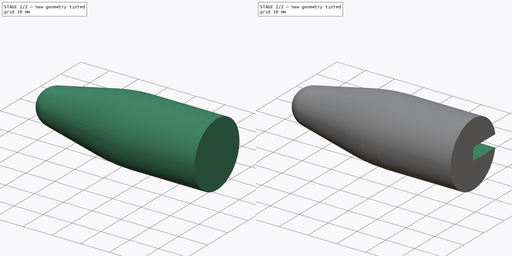
[diagram: build sequence overview — one tinted view per stage of 2, left to right]
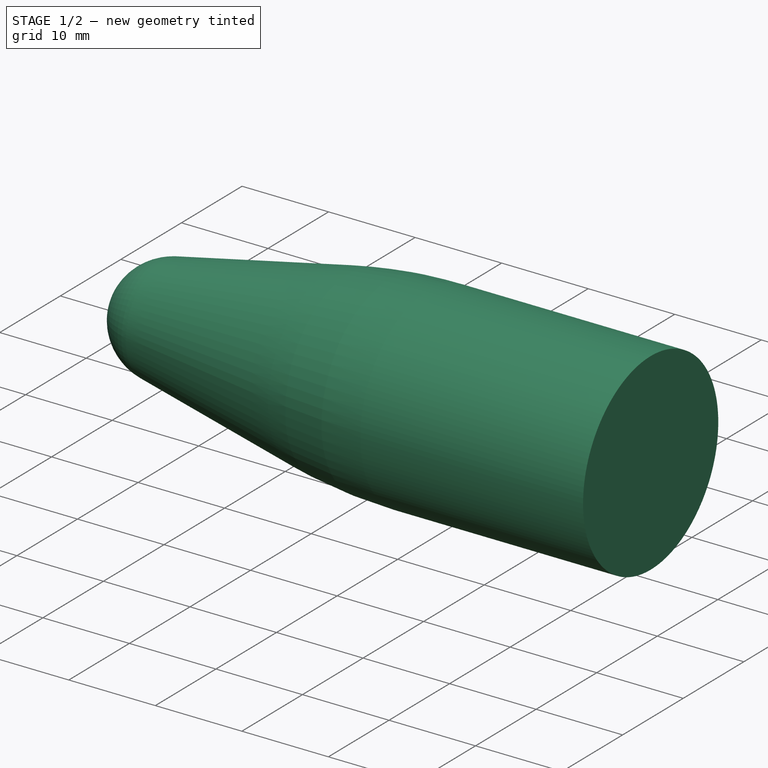
[diagram: stage 1 of 2 — iso view after this stage's code; geometry added in this stage tinted green]
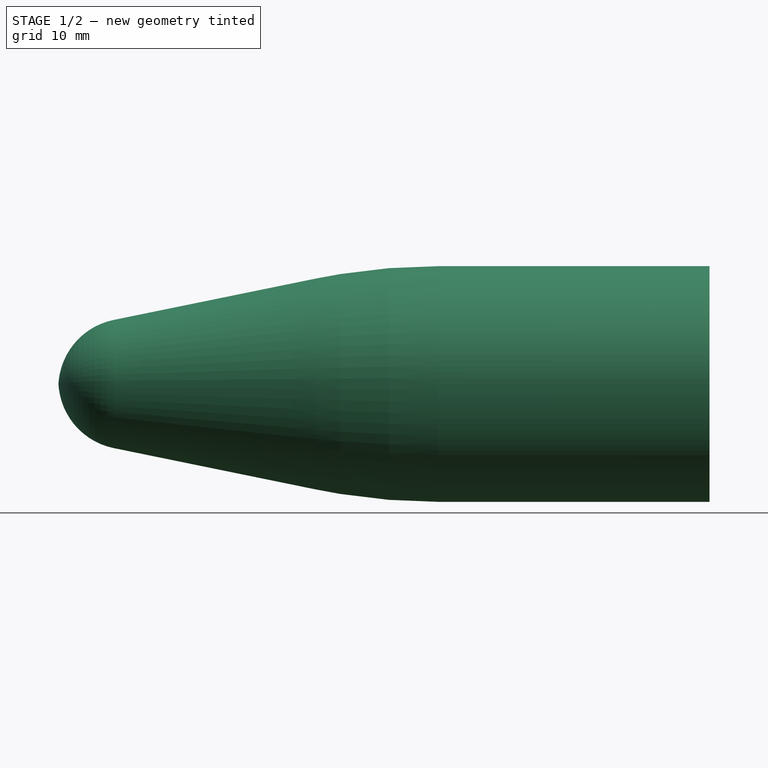
[diagram: stage 1 of 2 — front view after this stage's code; geometry added in this stage tinted green]
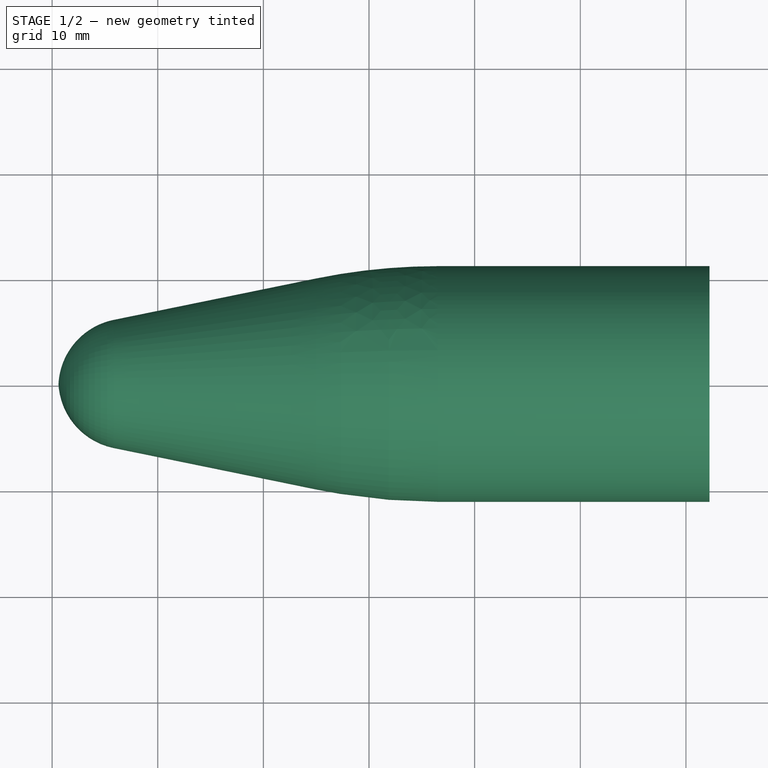
[diagram: stage 1 of 2 — top view after this stage's code; geometry added in this stage tinted green]
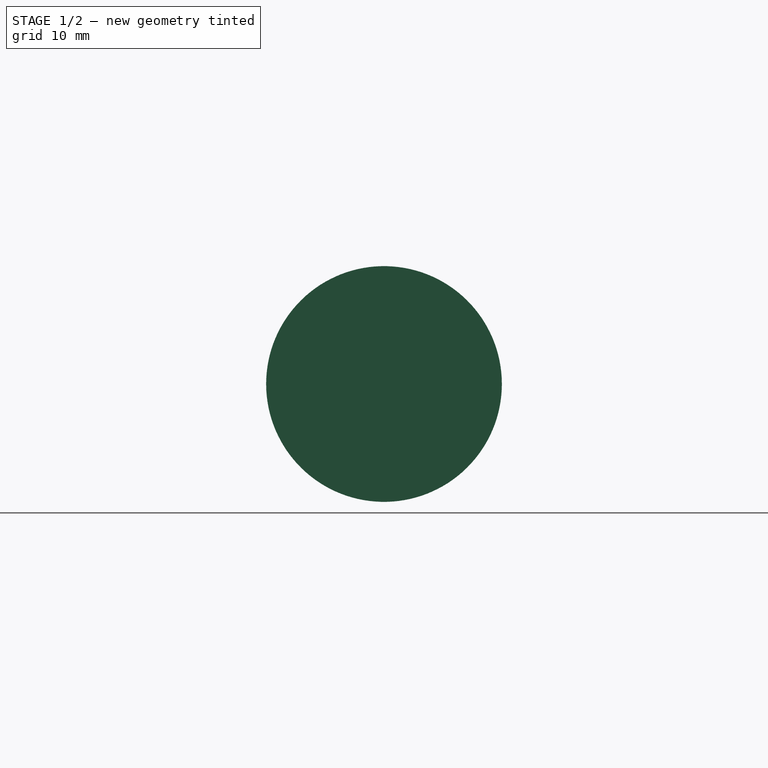
[diagram: stage 1 of 2 — right view after this stage's code; geometry added in this stage tinted green]
FCSTD DOCUMENT  (FreeCAD 0.18R16131 (Git))
Label: muso
License: All rights reserved
LicenseURL: http://en.wikipedia.org/wiki/All_rights_reserved
objects: Sketcher::SketchObject×4, PartDesign::Revolution×1, PartDesign::Pocket×1, PartDesign::Body×1
note: 9 computed .brp shape members not serialized (recipe doc carries the construction recipe); baked Part::Feature solids carry a one-line shape summary decoded from their .brp

FEATURE [Sketcher::SketchObject] CopySketch004
  sketch-geometry (10):
    g0: LineSegment StartX=-94.2446 StartY=6.83669 StartZ=0 EndX=-74.9207 EndY=10.7048 EndZ=0
    g1: LineSegment StartX=-63.6033 StartY=11.8263 StartZ=0 EndX=-42.5521 EndY=11.8263 EndZ=0
    g2: LineSegment StartX=-42.5521 StartY=11.8263 StartZ=0 EndX=-25.1285 EndY=11.8263 EndZ=0
    g3: ArcOfCircle CenterX=-63.6033 CenterY=-45.8337 CenterZ=0 NormalX=0 NormalY=0 NormalZ=1 AngleXU=0 Radius=57.6601 StartAngle=1.5708 EndAngle=1.76836
    g4: ArcOfCircle CenterX=-92.8385 CenterY=-0.187922 CenterZ=0 NormalX=0 NormalY=0 NormalZ=1 AngleXU=0 Radius=7.16396 StartAngle=1.76836 EndAngle=3.11536
    g5: LineSegment StartX=-25.1285 StartY=0 StartZ=0 EndX=-100 EndY=-2e-16 EndZ=0
    g6: GeomPoint X=-42.6345 Y=0 Z=0
    g7: GeomPoint X=-25.1285 Y=11.8263 Z=0
    g8: GeomPoint X=-25.1285 Y=0 Z=0
    g9: LineSegment StartX=-25.1285 StartY=11.8263 StartZ=0 EndX=-25.1285 EndY=0 EndZ=0
  constraints (15):
    c: Horizontal(g1)
    c: Coincident(g1,g2)
    c: Horizontal(g2)
    c: Tangent(g0,g3) = 1.5708
    c: Tangent(g1,g3) = 1.5708
    c: Tangent(g0,g4) = 1.5708
    c: Coincident(g5,g4) = 1.5708
    c: PointOnObject(g6,g5)
    c: PointOnObject(g7,g2)
    c: PointOnObject(g8,g5)
    c: Coincident(g9,g7)
    c: Coincident(g9,g8)
    c: Vertical(g9)
    c: PointOnObject(g5,g9)
    c: PointOnObject(g2,g9)
FEATURE [Sketcher::SketchObject] CopyCopySketch004
  sketch-geometry (10):
    g0: LineSegment StartX=-94.1746 StartY=6.06711 StartZ=0 EndX=-74.9926 EndY=9.99307 EndZ=0
    g1: LineSegment StartX=-63.5022 StartY=11.1569 StartZ=0 EndX=-49.0764 EndY=11.1569 EndZ=0
    g2: LineSegment StartX=-49.0764 StartY=11.1569 StartZ=0 EndX=-37.7656 EndY=11.1569 EndZ=0
    g3: ArcOfCircle CenterX=-63.5022 CenterY=-46.1484 CenterZ=0 NormalX=0 NormalY=0 NormalZ=1 AngleXU=0 Radius=57.3053 StartAngle=1.5708 EndAngle=1.77268
    g4: ArcOfCircle CenterX=-92.8622 CenterY=-0.344938 CenterZ=0 NormalX=0 NormalY=0 NormalZ=1 AngleXU=0 Radius=6.54497 StartAngle=1.77268 EndAngle=3.08887
    g5: LineSegment StartX=-37.7656 StartY=0 StartZ=0 EndX=-99.3981 EndY=9e-16 EndZ=0
    g6: GeomPoint X=-50.3335 Y=0 Z=0
    g7: GeomPoint X=-37.7656 Y=11.1569 Z=0
    g8: GeomPoint X=-37.7656 Y=0 Z=0
    g9: LineSegment StartX=-37.7656 StartY=11.1569 StartZ=0 EndX=-37.7656 EndY=0 EndZ=0
  constraints (17):
    c: Horizontal(g1)
    c: Coincident(g1,g2)
    c: Horizontal(g2)
    c: Tangent(g0,g3) = 1.5708
    c: Tangent(g1,g3) = 1.5708
    c: Tangent(g0,g4) = 1.5708
    c: Coincident(g5,g4) = 1.5708
    c: PointOnObject(g6,g5)
    c: PointOnObject(g7,g2)
    c: PointOnObject(g8,g5)
    c: Coincident(g9,g7)
    c: Coincident(g9,g8)
    c: Vertical(g9)
    c: PointOnObject(g5,g9)
    c: PointOnObject(g2,g9)
    c: PointOnObject(g5,g-1)
    c: PointOnObject(g4,g-1)
FEATURE [PartDesign::Revolution] Revolution
  Angle = 360
  Axis = (1,0,0)
  Base = (0,0,0)
  Profile = -> CopyCopySketch004
  ReferenceAxis = -> CopyCopySketch004 [H_Axis]
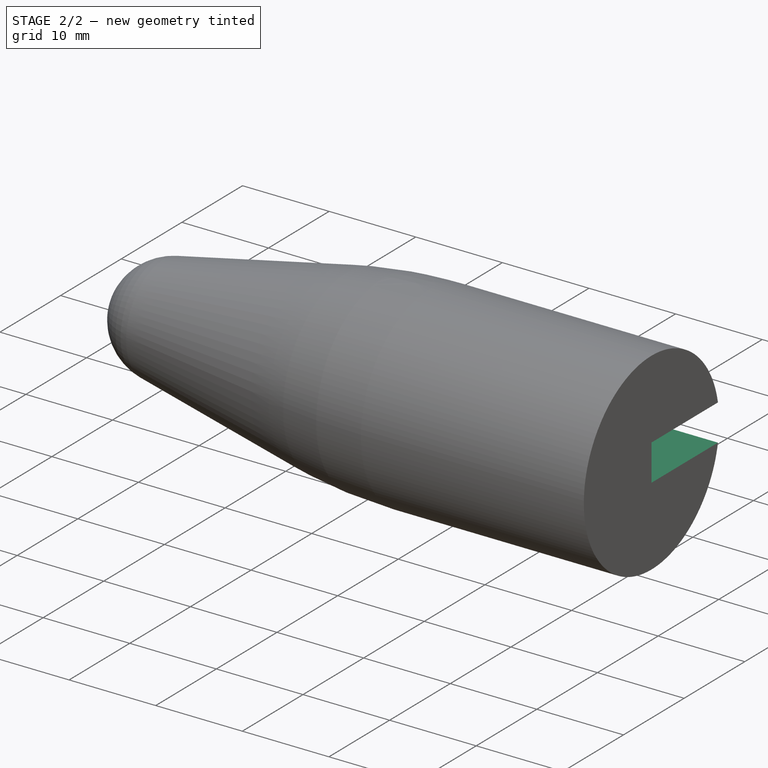
[diagram: stage 2 of 2 — iso view after this stage's code; geometry added in this stage tinted green]
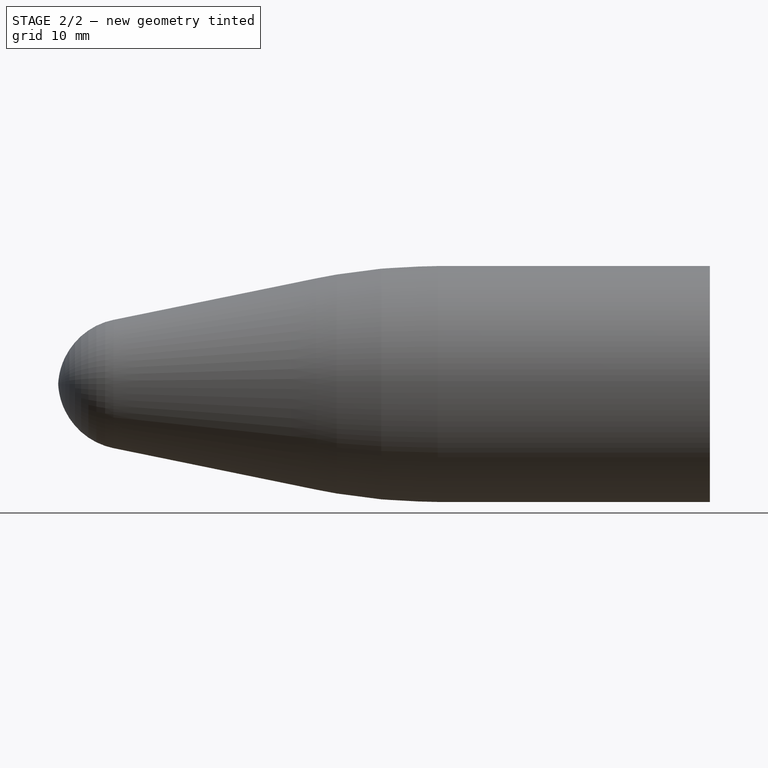
[diagram: stage 2 of 2 — front view after this stage's code; geometry added in this stage tinted green]
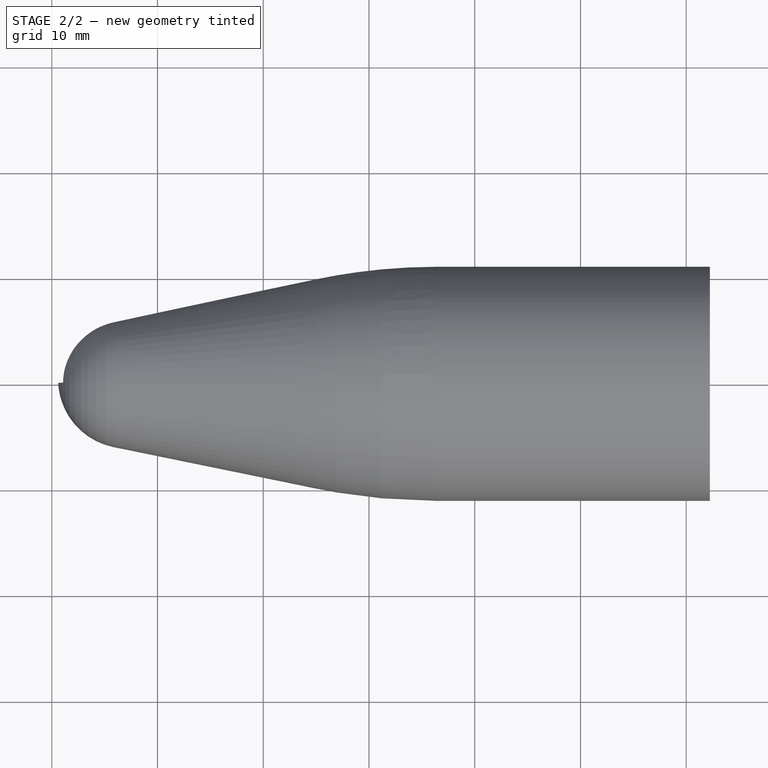
[diagram: stage 2 of 2 — top view after this stage's code; geometry added in this stage tinted green]
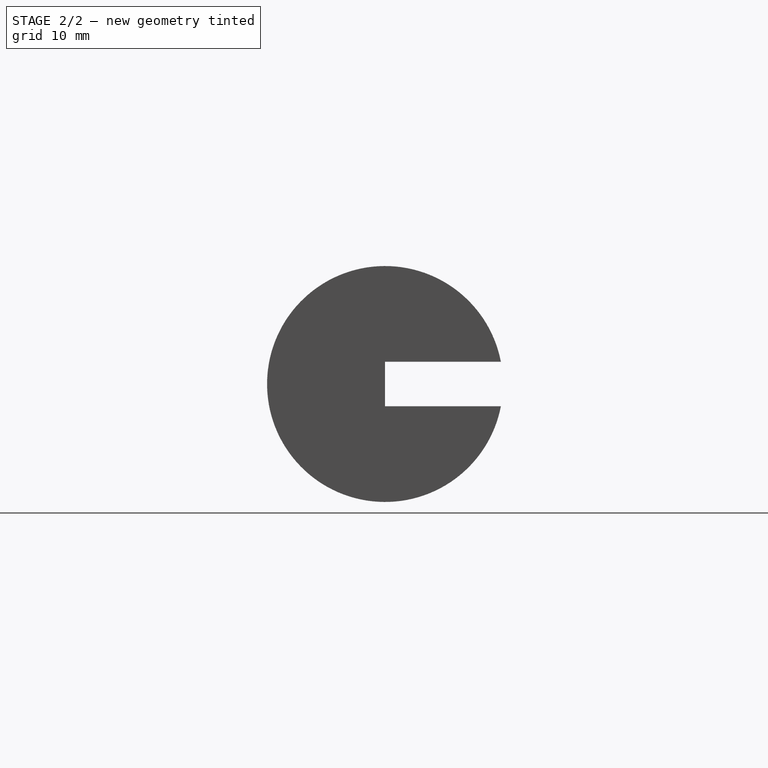
[diagram: stage 2 of 2 — right view after this stage's code; geometry added in this stage tinted green]
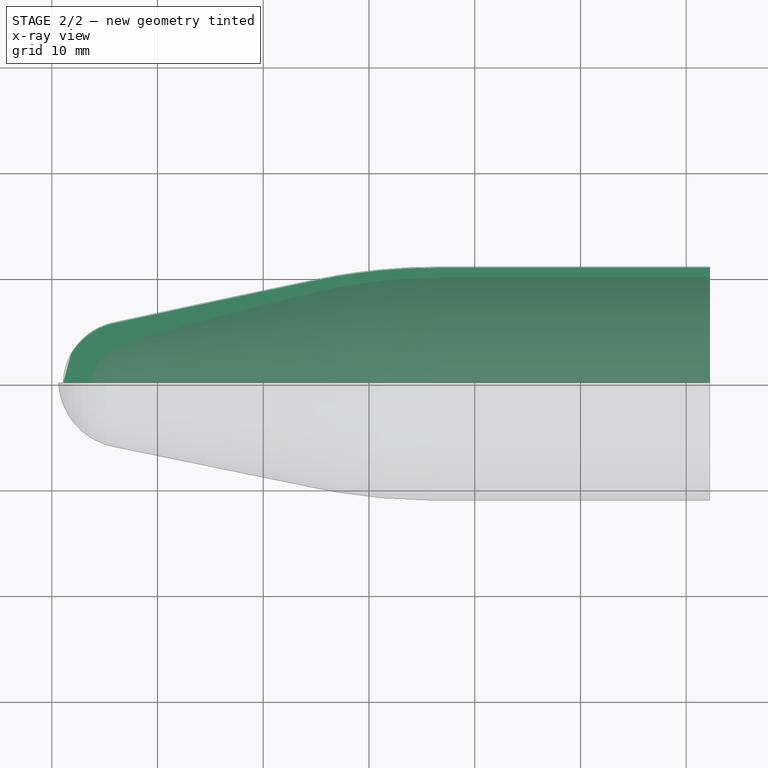
[diagram: stage 2 of 2 — x-ray composite at the top view; earlier geometry ghosted, this stage's added geometry solid]
FEATURE [Sketcher::SketchObject] Sketch
  MapMode = 5
  Placement = pos=(0,0,0) rot=(1,0,0;1.5708rad)
  Support = -> [XZ_Plane]
FEATURE [Sketcher::SketchObject] Sketch001
  MapMode = 5
  Placement = pos=(0,0,0) rot=(1,0,0;1.5708rad)
  Support = -> [XZ_Plane]
  sketch-geometry (4):
    g0: LineSegment StartX=-102.699 StartY=2.1 StartZ=0 EndX=-17.6595 EndY=2.1 EndZ=0
    g1: LineSegment StartX=-17.6595 StartY=2.1 StartZ=0 EndX=-17.6595 EndY=-2.1 EndZ=0
    g2: LineSegment StartX=-17.6595 StartY=-2.1 StartZ=0 EndX=-102.699 EndY=-2.1 EndZ=0
    g3: LineSegment StartX=-102.699 StartY=-2.1 StartZ=0 EndX=-102.699 EndY=2.1 EndZ=0
  constraints (9):
    c: Coincident(g0,g1)
    c: Coincident(g1,g2)
    c: Coincident(g2,g3)
    c: Coincident(g3,g0)
    c: Horizontal(g0)
    c: Horizontal(g2)
    c: Vertical(g3)
    c: Symmetric(g0,g1,g-1)
    c: DistanceY(g1,g0) = 4.2
FEATURE [PartDesign::Pocket] Pocket
  BaseFeature = -> Revolution
  Length = 20
  Length2 = 100
  Profile = -> Sketch001
  Type = 0
FEATURE [PartDesign::Body] Body
  Group = -> [Revolution,Sketch,Sketch001,Pocket]
  Origin = -> Origin
  Tip = -> Pocket
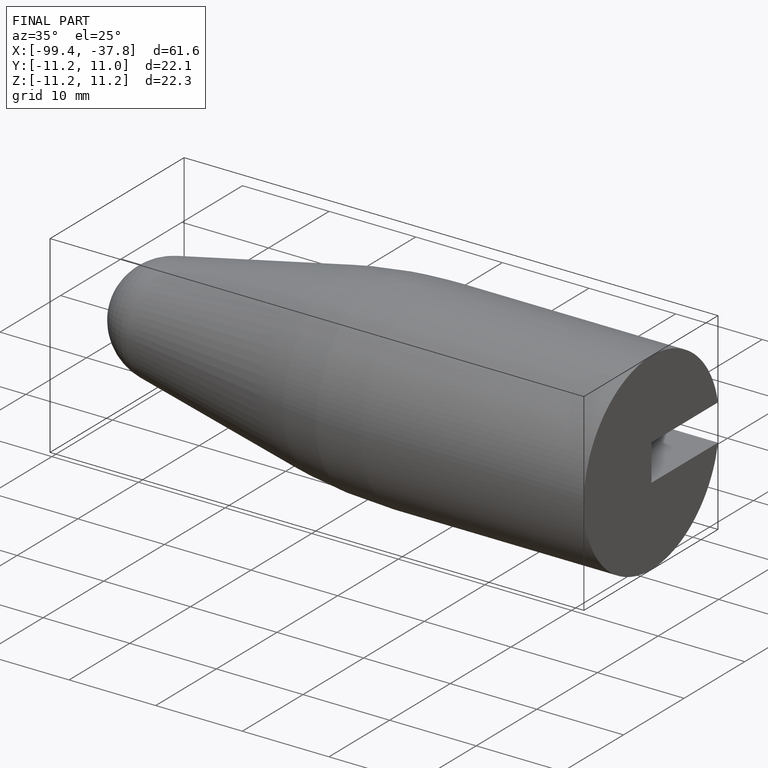
[diagram: finished part — iso view with bounding-box wireframe]
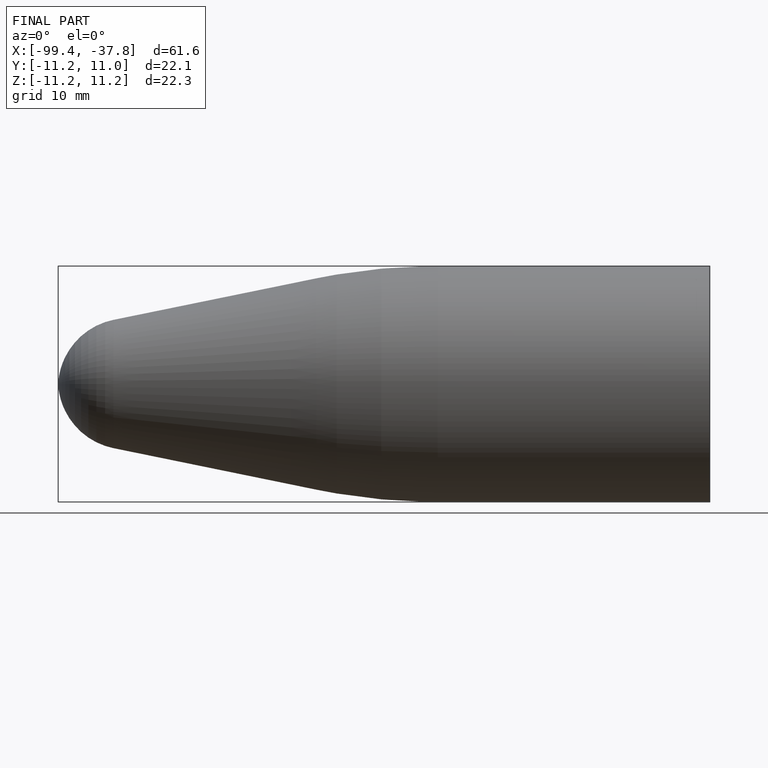
[diagram: finished part — front view with bounding-box wireframe]
